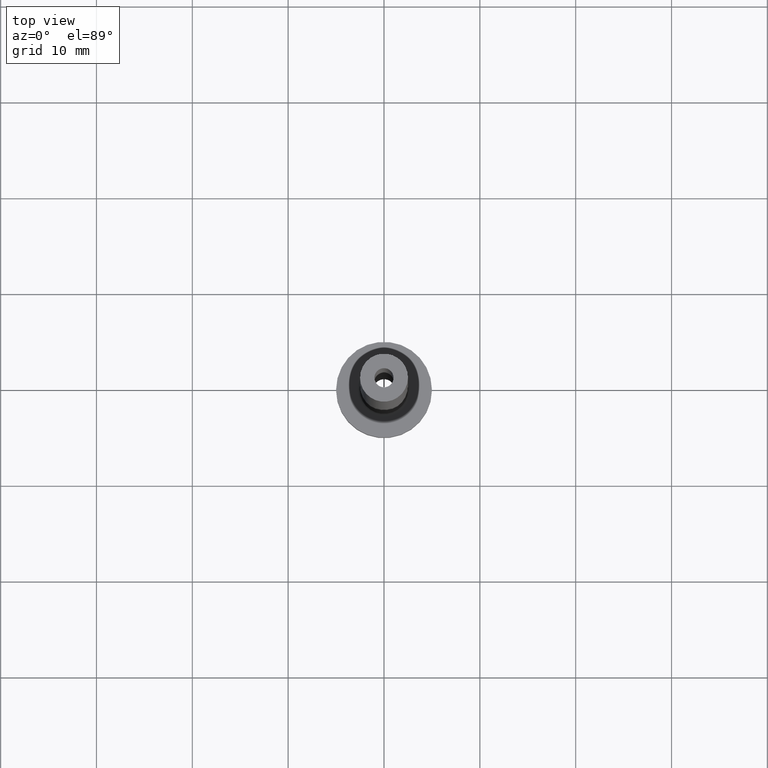
[diagram: clean part render]
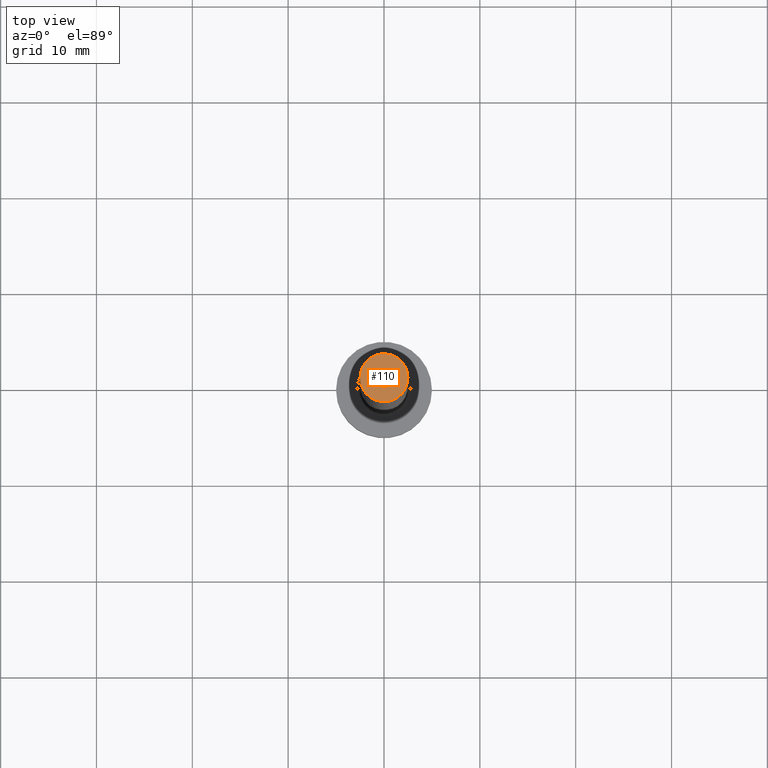
[diagram: same view with one face highlighted and labeled with its STEP entity id]
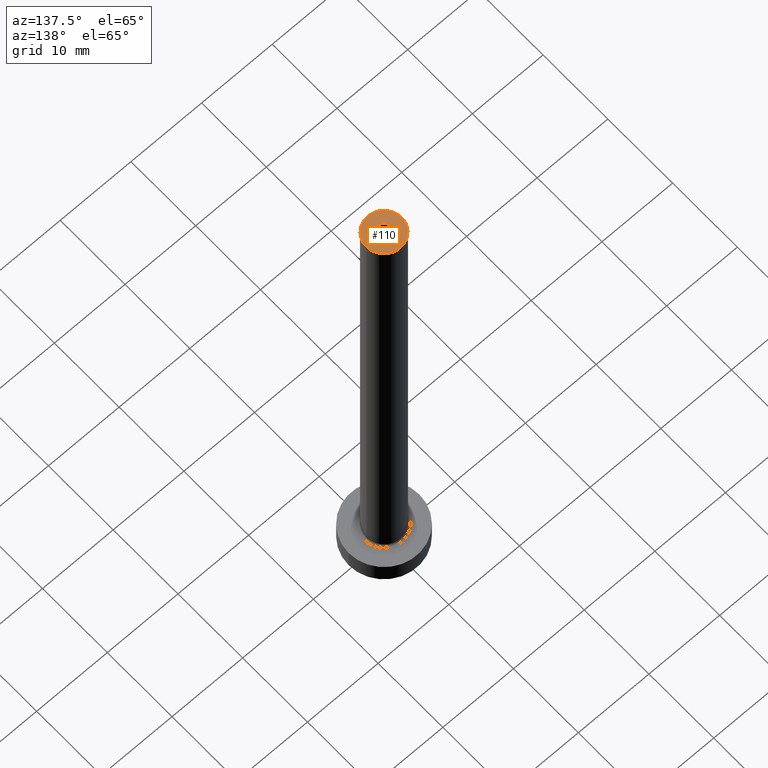
[diagram: same view with one face highlighted and labeled with its STEP entity id]
A machine part, top view. The second image highlights one B-rep face of the part: STEP entity #110.
A second angle (auxiliary view) of the same face is appended — the face is thin or edge-on in the first view.
In plain terms, the highlighted planar face has unit normal (0, 0, 1).
Its self-contained STEP definition (entity closure, byte-faithful):
#3 = CIRCLE ( 'NONE', #13, 2.500000000000000000 ) ;
#7 = VERTEX_POINT ( 'NONE', #435 ) ;
#13 = AXIS2_PLACEMENT_3D ( 'NONE', #141, #461, #257 ) ;
#19 = EDGE_LOOP ( 'NONE', ( #370, #190 ) ) ;
#28 = AXIS2_PLACEMENT_3D ( 'NONE', #404, #204, #441 ) ;
#40 = CARTESIAN_POINT ( 'NONE',  ( -1.000000000000000000, 0.000000000000000000, 75.00000000000001421 ) ) ;
#44 = VERTEX_POINT ( 'NONE', #443 ) ;
#54 = CARTESIAN_POINT ( 'NONE',  ( 0.000000000000000000, 0.000000000000000000, 75.00000000000001421 ) ) ;
#56 = AXIS2_PLACEMENT_3D ( 'NONE', #54, #376, #380 ) ;
#63 = FACE_BOUND ( 'NONE', #230, .T. ) ;
#64 = EDGE_CURVE ( 'NONE', #264, #430, #299, .T. ) ;
#74 = CIRCLE ( 'NONE', #28, 2.500000000000000000 ) ;
#110 = ADVANCED_FACE ( 'NONE', ( #63, #208 ), #245, .T. ) ;
#112 = CARTESIAN_POINT ( 'NONE',  ( 0.000000000000000000, 0.000000000000000000, 75.00000000000001421 ) ) ;
#139 = DIRECTION ( 'NONE',  ( 0.000000000000000000, 0.000000000000000000, 1.000000000000000000 ) ) ;
#141 = CARTESIAN_POINT ( 'NONE',  ( 0.000000000000000000, 0.000000000000000000, 75.00000000000001421 ) ) ;
#144 = EDGE_CURVE ( 'NONE', #44, #7, #74, .T. ) ;
#174 = DIRECTION ( 'NONE',  ( 0.000000000000000000, 0.000000000000000000, 1.000000000000000000 ) ) ;
#180 = DIRECTION ( 'NONE',  ( 1.000000000000000000, 0.000000000000000000, 0.000000000000000000 ) ) ;
#190 = ORIENTED_EDGE ( 'NONE', *, *, #284, .T. ) ;
#204 = DIRECTION ( 'NONE',  ( 0.000000000000000000, 0.000000000000000000, 1.000000000000000000 ) ) ;
#208 = FACE_OUTER_BOUND ( 'NONE', #19, .T. ) ;
#218 = AXIS2_PLACEMENT_3D ( 'NONE', #279, #139, #411 ) ;
#230 = EDGE_LOOP ( 'NONE', ( #367, #248 ) ) ;
#245 = PLANE ( 'NONE',  #56 ) ;
#248 = ORIENTED_EDGE ( 'NONE', *, *, #64, .F. ) ;
#257 = DIRECTION ( 'NONE',  ( 1.000000000000000000, 0.000000000000000000, 0.000000000000000000 ) ) ;
#262 = EDGE_CURVE ( 'NONE', #430, #264, #318, .T. ) ;
#264 = VERTEX_POINT ( 'NONE', #321 ) ;
#279 = CARTESIAN_POINT ( 'NONE',  ( 0.000000000000000000, 0.000000000000000000, 75.00000000000001421 ) ) ;
#281 = AXIS2_PLACEMENT_3D ( 'NONE', #112, #174, #180 ) ;
#284 = EDGE_CURVE ( 'NONE', #7, #44, #3, .T. ) ;
#299 = CIRCLE ( 'NONE', #218, 1.000000000000000000 ) ;
#318 = CIRCLE ( 'NONE', #281, 1.000000000000000000 ) ;
#321 = CARTESIAN_POINT ( 'NONE',  ( 1.000000000000000000, 1.224646799147353207E-16, 75.00000000000001421 ) ) ;
#367 = ORIENTED_EDGE ( 'NONE', *, *, #262, .F. ) ;
#370 = ORIENTED_EDGE ( 'NONE', *, *, #144, .T. ) ;
#376 = DIRECTION ( 'NONE',  ( 0.000000000000000000, 0.000000000000000000, 1.000000000000000000 ) ) ;
#380 = DIRECTION ( 'NONE',  ( 1.000000000000000000, 0.000000000000000000, -0.000000000000000000 ) ) ;
#404 = CARTESIAN_POINT ( 'NONE',  ( 0.000000000000000000, 0.000000000000000000, 75.00000000000001421 ) ) ;
#411 = DIRECTION ( 'NONE',  ( 1.000000000000000000, 0.000000000000000000, 0.000000000000000000 ) ) ;
#430 = VERTEX_POINT ( 'NONE', #40 ) ;
#435 = CARTESIAN_POINT ( 'NONE',  ( 2.500000000000000000, 3.061616997868383141E-16, 75.00000000000001421 ) ) ;
#441 = DIRECTION ( 'NONE',  ( 1.000000000000000000, 0.000000000000000000, 0.000000000000000000 ) ) ;
#443 = CARTESIAN_POINT ( 'NONE',  ( -2.500000000000000000, 0.000000000000000000, 75.00000000000001421 ) ) ;
#461 = DIRECTION ( 'NONE',  ( 0.000000000000000000, 0.000000000000000000, 1.000000000000000000 ) ) ;